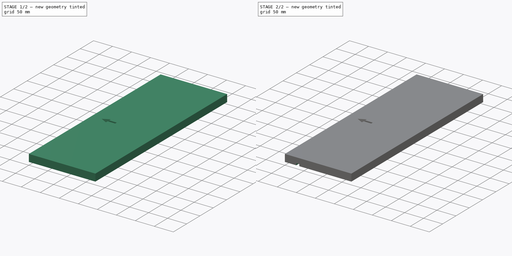
[diagram: build sequence overview — one tinted view per stage of 2, left to right]
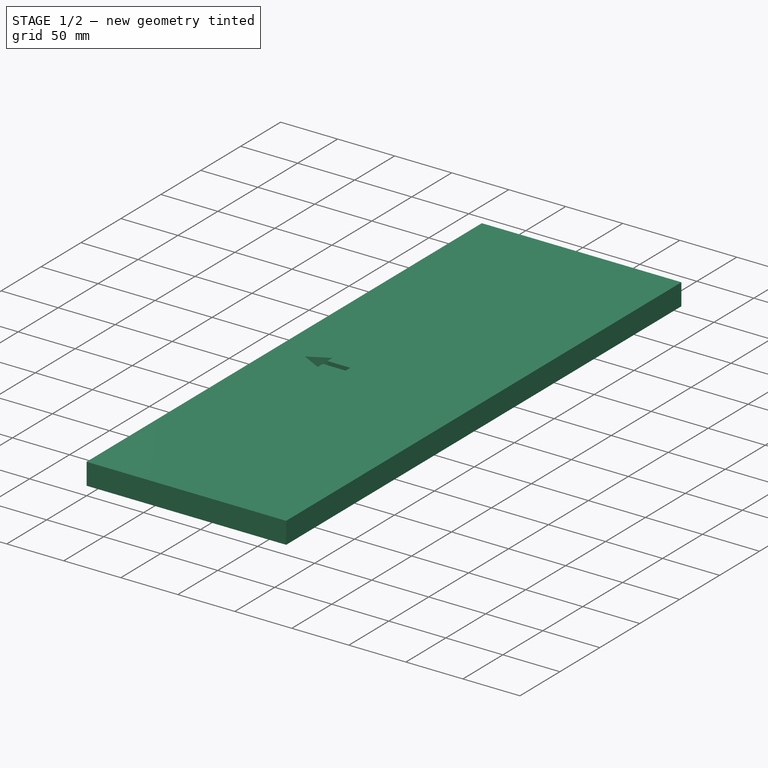
[diagram: stage 1 of 2 — iso view after this stage's code; geometry added in this stage tinted green]
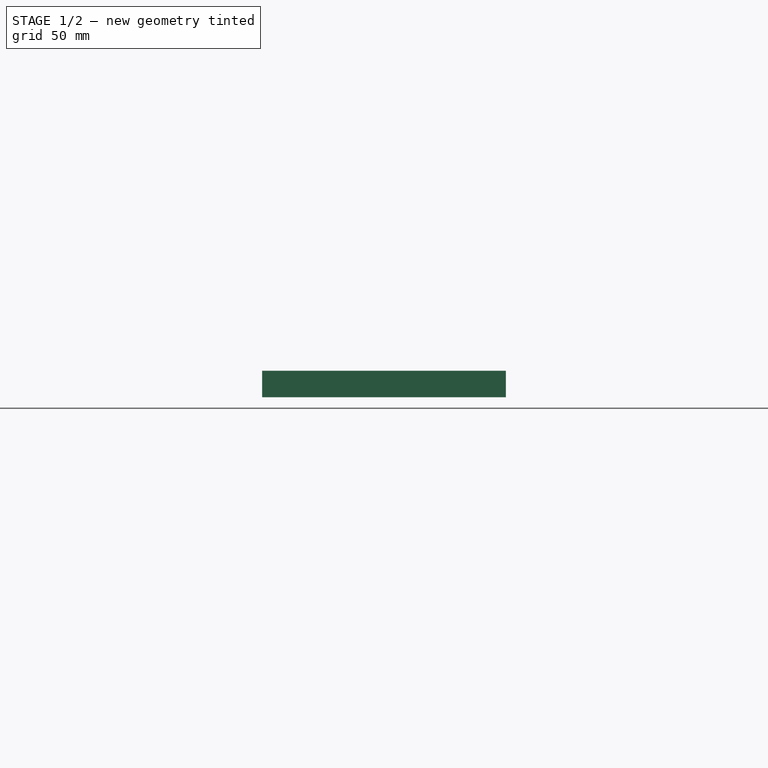
[diagram: stage 1 of 2 — front view after this stage's code; geometry added in this stage tinted green]
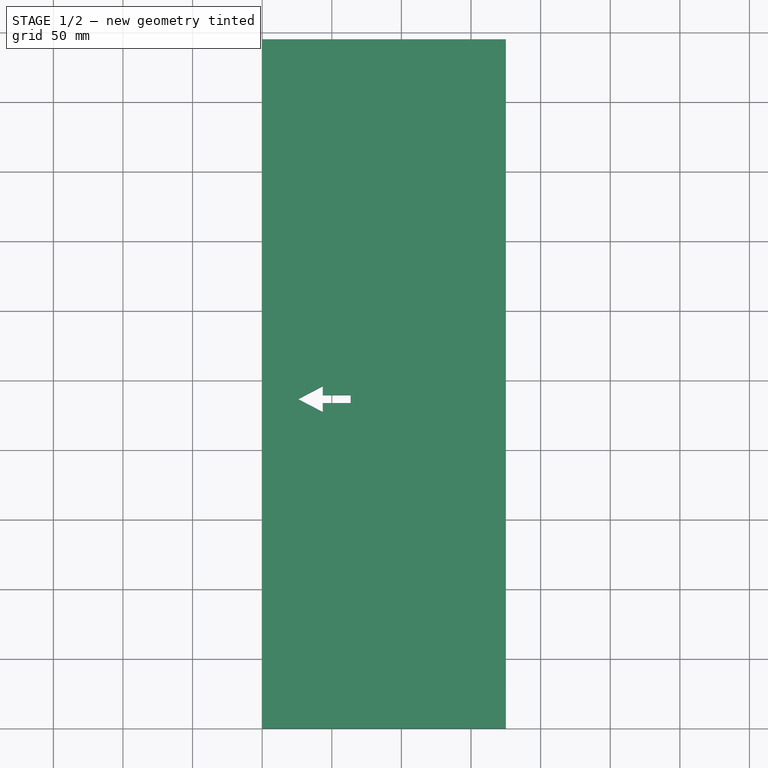
[diagram: stage 1 of 2 — top view after this stage's code; geometry added in this stage tinted green]
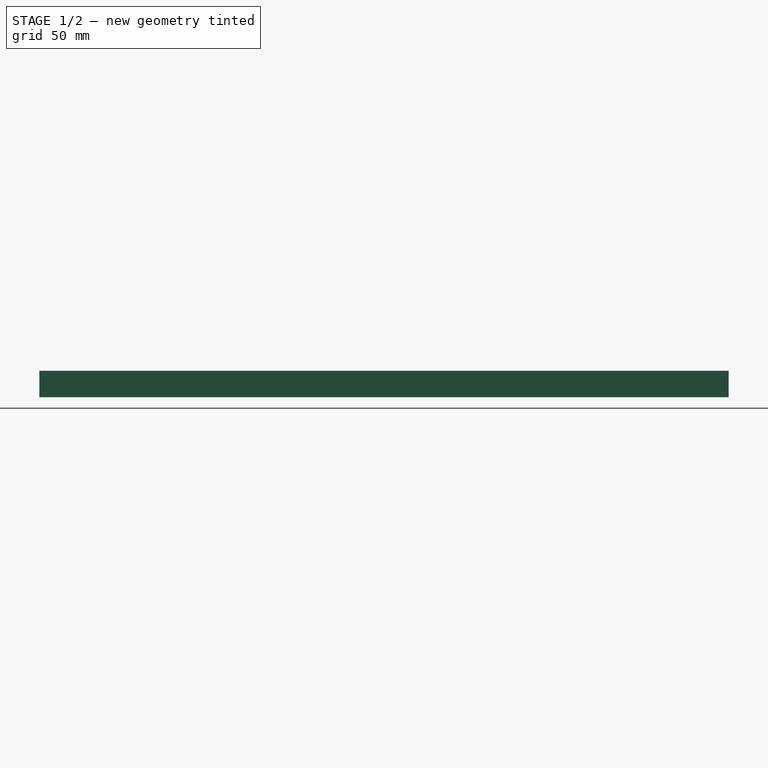
[diagram: stage 1 of 2 — right view after this stage's code; geometry added in this stage tinted green]
FCSTD DOCUMENT  (FreeCAD 0.20R29177 (Git))
Label: 8000_Roof
License: All rights reserved
LicenseURL: http://en.wikipedia.org/wiki/All_rights_reserved
objects: Sketcher::SketchObject×3, PartDesign::Pocket×2, PartDesign::Pad×1, Spreadsheet::Sheet×1, PartDesign::Body×1
note: 10 computed .brp shape members not serialized (recipe doc carries the construction recipe); baked Part::Feature solids carry a one-line shape summary decoded from their .brp

FEATURE [Sketcher::SketchObject] Sketch
  FullyConstrained = true
  MapMode = 5
  Support = -> [XY_Plane]
  expr: Constraints[5] = <<xls>>.k_w
  expr: Constraints[6] = <<xls>>.k_d
  sketch-geometry (5):
    g0: LineSegment StartX=0 StartY=495 StartZ=0 EndX=175 EndY=495 EndZ=0
    g1: LineSegment StartX=175 StartY=495 StartZ=0 EndX=175 EndY=0 EndZ=0
    g2: LineSegment StartX=175 StartY=0 StartZ=0 EndX=0 EndY=0 EndZ=0
    g3: LineSegment StartX=0 StartY=0 StartZ=0 EndX=0 EndY=247.5 EndZ=0
    g4: LineSegment StartX=0 StartY=247.5 StartZ=0 EndX=0 EndY=495 EndZ=0
  constraints (14):
    c: Coincident(g0,g1)
    c: Coincident(g1,g2)
    c: Horizontal(g0)
    c: Horizontal(g2)
    c: Vertical(g1)
    c: DistanceY(g1,g1) = 495
    c: DistanceX(g0,g0) = 175
    c: Coincident(g3,g2)
    c: Coincident(g4,g0)
    c: Equal(g3,g4)
    c: Vertical(g4)
    c: Vertical(g3)
    c: Coincident(g3,g4)
    c: Coincident(g2,g-1)
FEATURE [PartDesign::Pad] Pad
  AllowMultiFace = false
  Direction = (0,0,1)
  Length = 19
  Length2 = 100
  Profile = -> Sketch
  Type = 0
  expr: Length = <<xls>>.k_t_0
FEATURE [Spreadsheet::Sheet] Spreadsheet  label="xls"
  cells = B3=Marquee Top; B4=Orientation; D4=(0,0,1); B5=Thickness; C5=k_t_0; D5(k_t_0)=19; E5=mm; F5=10,13,16,19; B6=Width Y; C6=k_w; D6(k_w)=495; E6=mm; B7=Deapth X; C7=k_d; D7(k_d)=175; E7=mm
FEATURE [Sketcher::SketchObject] Sketch001
  FullyConstrained = false
  MapMode = 5
  Placement = pos=(0,0,0) rot=(1,0,0;3.14159rad)
  Support = -> [Pad]
  sketch-geometry (7):
    g0: LineSegment StartX=43.4789 StartY=-245.853 StartZ=0 EndX=25.6814 EndY=-236.579 EndZ=0
    g1: LineSegment StartX=25.6814 StartY=-236.579 StartZ=0 EndX=43.4789 EndY=-227.305 EndZ=0
    g2: LineSegment StartX=43.4789 StartY=-227.305 StartZ=0 EndX=43.4789 EndY=-233.656 EndZ=0
    g3: LineSegment StartX=43.4789 StartY=-233.656 StartZ=0 EndX=63.5478 EndY=-233.656 EndZ=0
    g4: LineSegment StartX=63.5478 StartY=-233.656 StartZ=0 EndX=63.5478 EndY=-239.503 EndZ=0
    g5: LineSegment StartX=63.5478 StartY=-239.503 StartZ=0 EndX=43.4789 EndY=-239.503 EndZ=0
    g6: LineSegment StartX=43.4789 StartY=-239.503 StartZ=0 EndX=43.4789 EndY=-245.853 EndZ=0
  constraints (16):
    c: Coincident(g0,g1)
    c: Coincident(g1,g2)
    c: Vertical(g2)
    c: Coincident(g2,g3)
    c: Horizontal(g3)
    c: Coincident(g3,g4)
    c: Coincident(g4,g5)
    c: Coincident(g5,g6)
    c: Vertical(g6)
    c: Coincident(g0,g6)
    c: Vertical(g4)
    c: Equal(g5,g3)
    c: Vertical(g2,g5)
    c: Equal(g6,g2)
    c: Equal(g0,g1)
    c: Equal(g1,g3)
FEATURE [PartDesign::Pocket] Pocket
  BaseFeature = -> Pad
  Direction = (0,0,1)
  Length = 20
  Length2 = 100
  Profile = -> Sketch001
  Type = 0
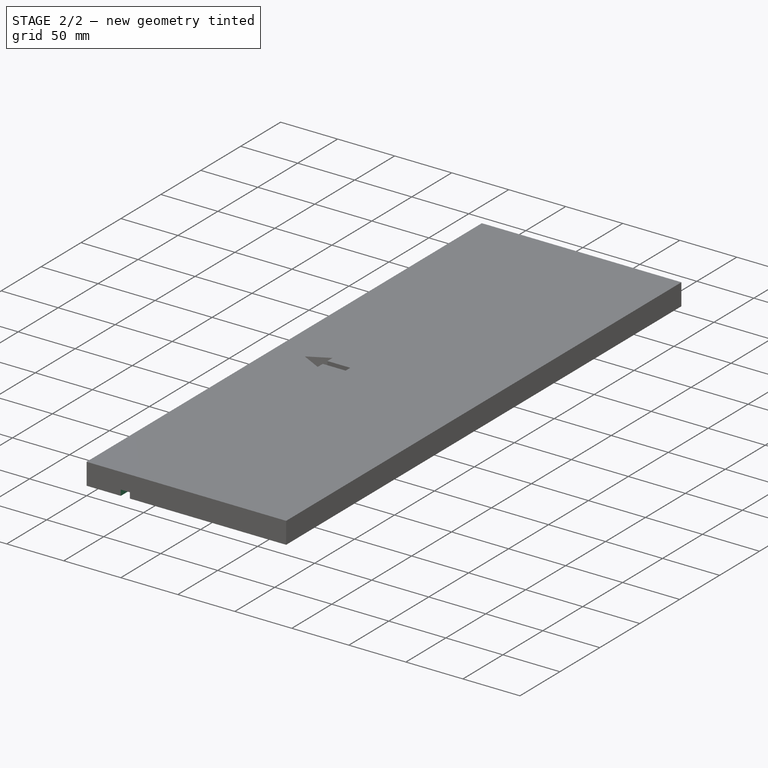
[diagram: stage 2 of 2 — iso view after this stage's code; geometry added in this stage tinted green]
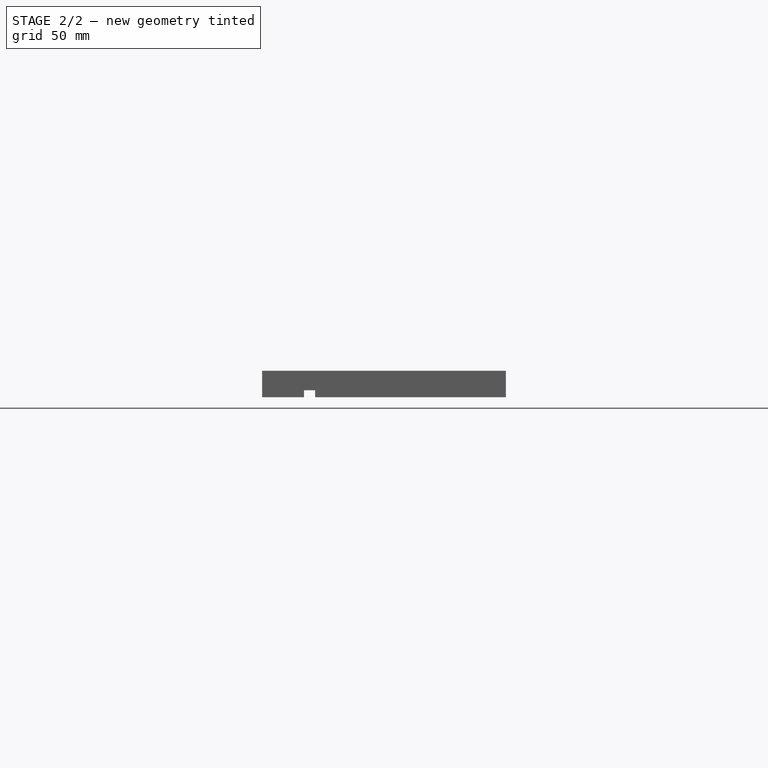
[diagram: stage 2 of 2 — front view after this stage's code; geometry added in this stage tinted green]
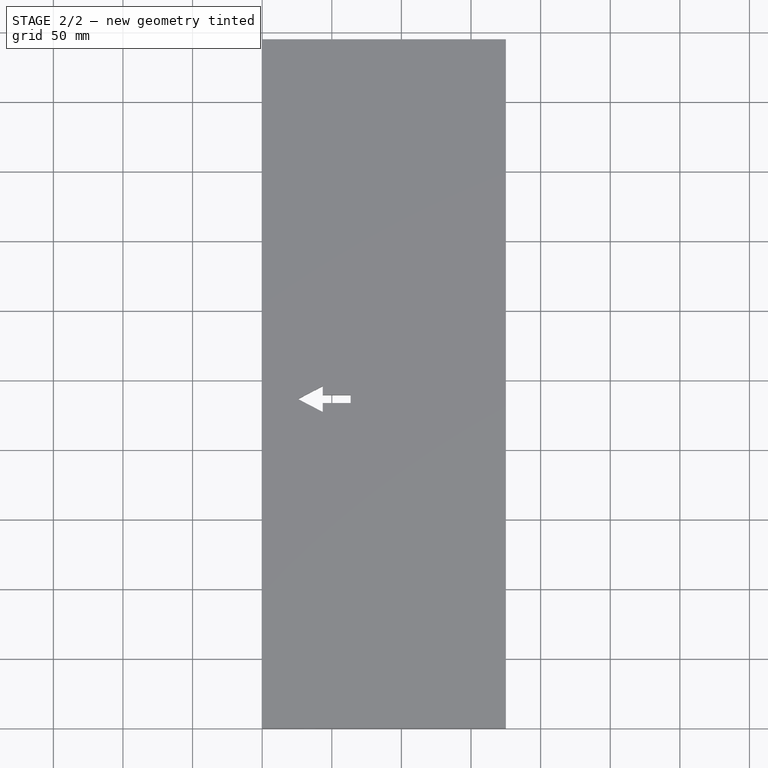
[diagram: stage 2 of 2 — top view after this stage's code; geometry added in this stage tinted green]
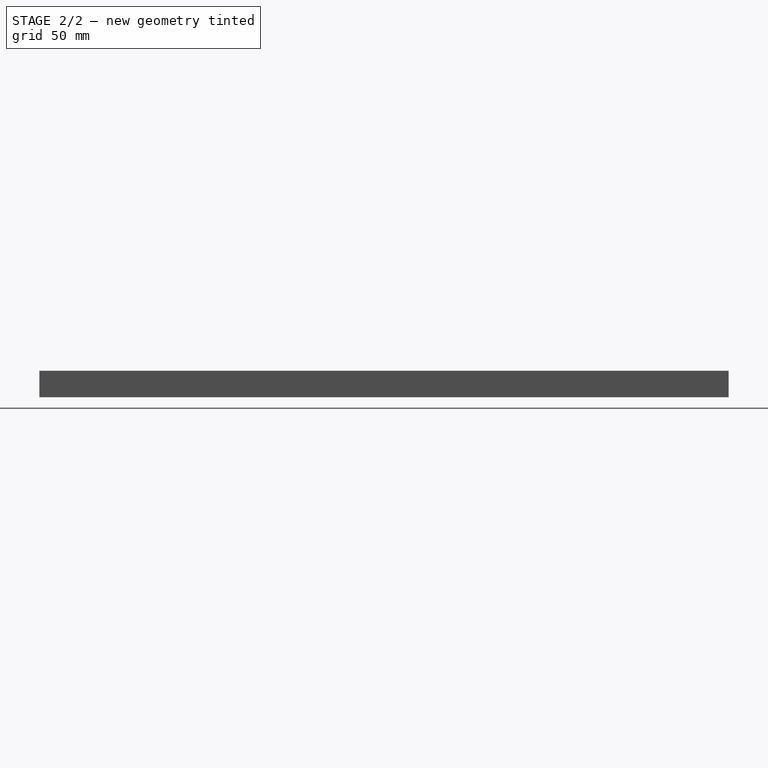
[diagram: stage 2 of 2 — right view after this stage's code; geometry added in this stage tinted green]
FEATURE [Sketcher::SketchObject] Sketch002
  ExternalGeometry = -> [Pocket]
  FullyConstrained = true
  MapMode = 5
  Placement = pos=(0,0,0) rot=(1,0,0;3.14159rad)
  Support = -> [Pocket]
  sketch-geometry (5):
    g0: LineSegment StartX=30 StartY=0 StartZ=0 EndX=38 EndY=0 EndZ=0
    g1: LineSegment StartX=38 StartY=0 StartZ=0 EndX=38 EndY=-495 EndZ=0
    g2: LineSegment StartX=38 StartY=-495 StartZ=0 EndX=30 EndY=-495 EndZ=0
    g3: LineSegment StartX=30 StartY=-495 StartZ=0 EndX=30 EndY=0 EndZ=0
    g4: GeomPoint X=0 Y=0 Z=0
  constraints (13):
    c: Coincident(g0,g1)
    c: Coincident(g1,g2)
    c: Coincident(g2,g3)
    c: Coincident(g3,g0)
    c: Horizontal(g0)
    c: Horizontal(g2)
    c: Vertical(g1)
    c: Vertical(g3)
    c: PointOnObject(g0,g-1)
    c: PointOnObject(g1,g-3)
    c: DistanceX(g0,g0) = 8
    c: Coincident(g4,g-1)
    c: DistanceX(g-1,g0) = 30
FEATURE [PartDesign::Pocket] Pocket001
  BaseFeature = -> Pocket
  Direction = (0,0,1)
  Length = 5
  Length2 = 100
  Profile = -> Sketch002
  Type = 0
FEATURE [PartDesign::Body] Body
  Group = -> [Sketch,Pad,Sketch001,Pocket,Sketch002,Pocket001]
  Origin = -> Origin
  Tip = -> Pocket001
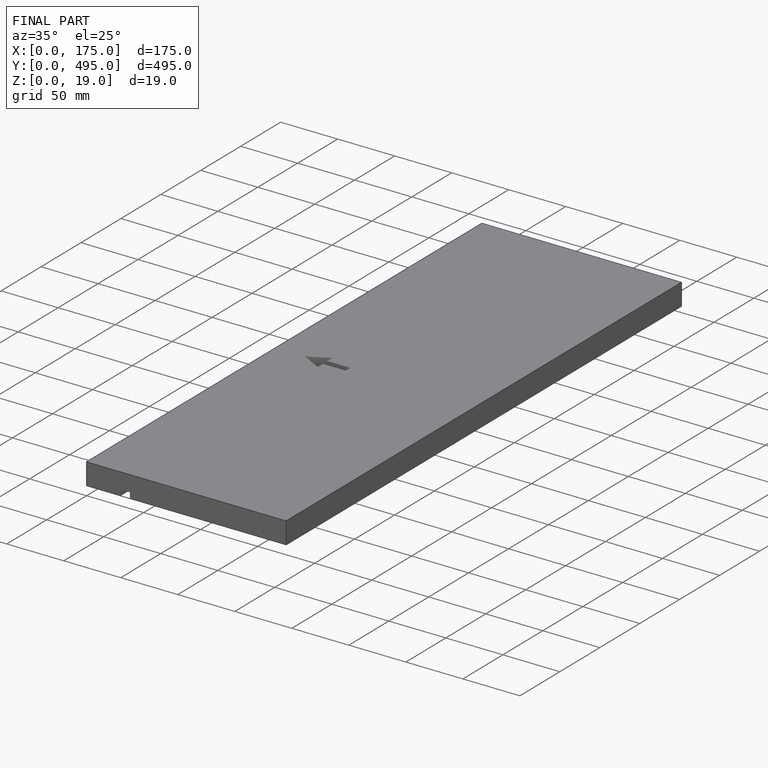
[diagram: finished part — iso view with bounding-box wireframe]
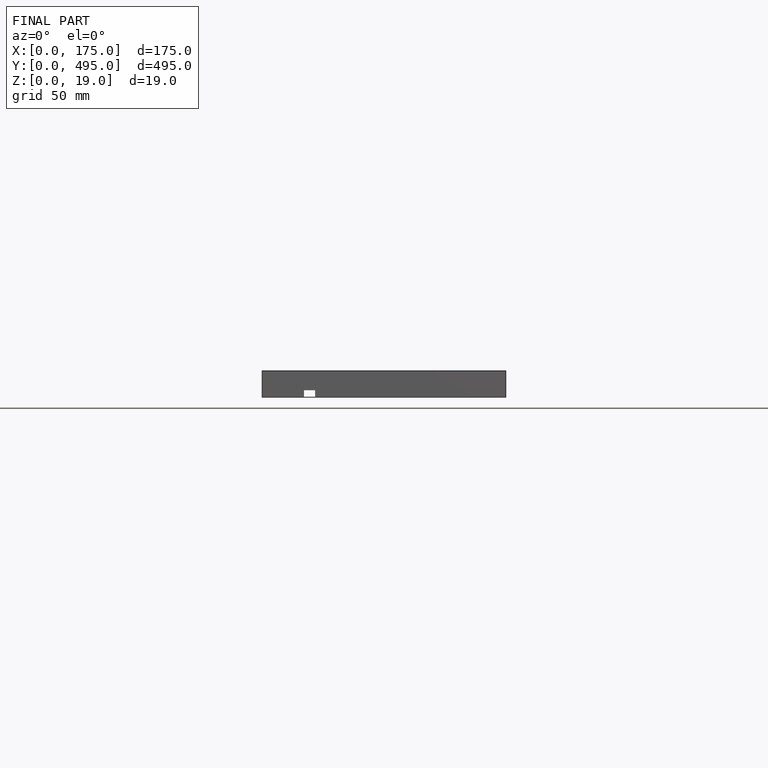
[diagram: finished part — front view with bounding-box wireframe]
